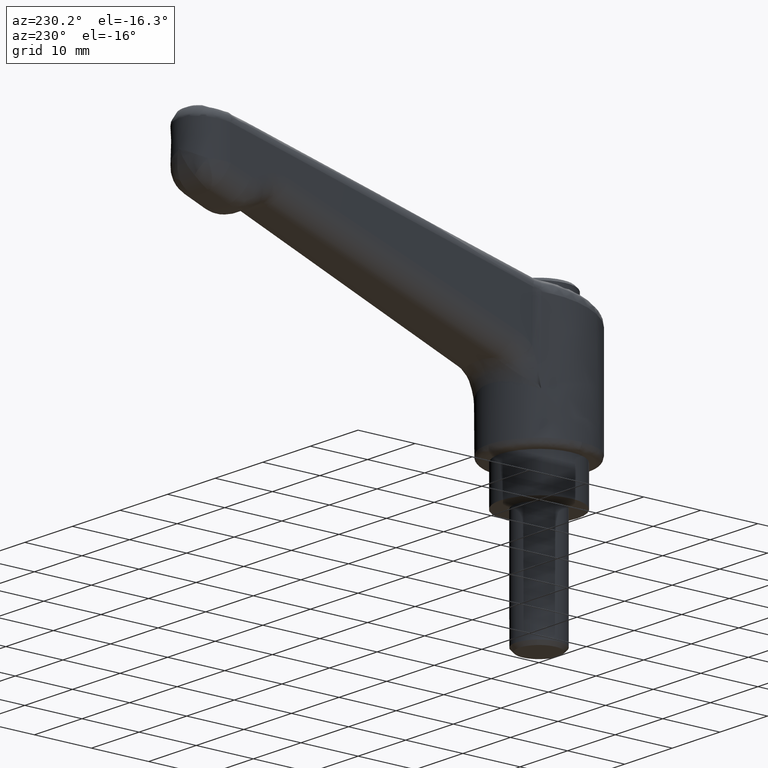
[diagram: clean part render]
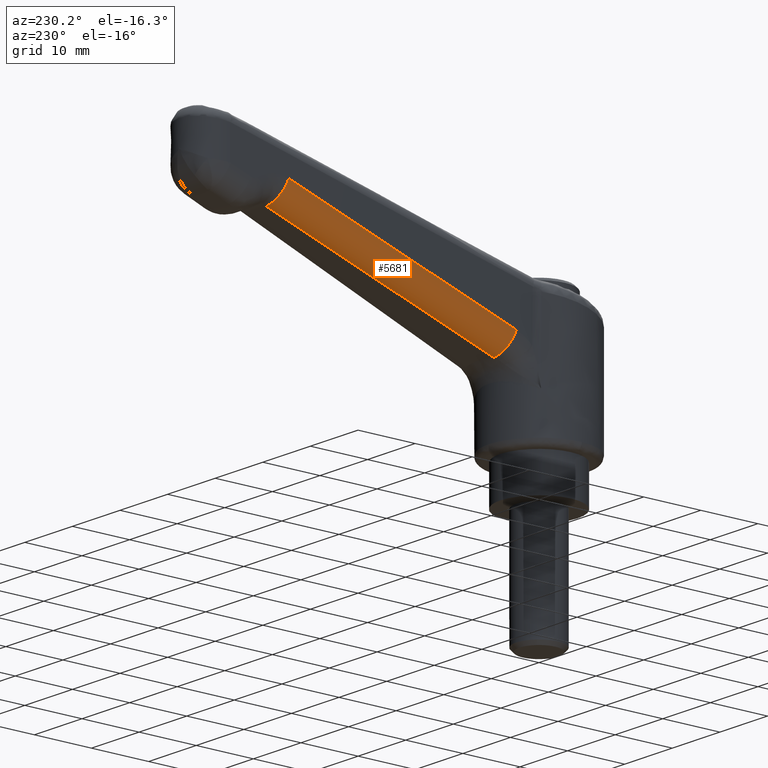
[diagram: same view with one face highlighted and labeled with its STEP entity id]
A machine part, auxiliary view. The second image highlights one B-rep face of the part: STEP entity #5681.
In plain terms, the highlighted face is a freeform B-spline surface patch.
Its self-contained STEP definition (entity closure, byte-faithful):
#5590=CARTESIAN_POINT('',(9.262958616653201,6.402179053604970,21.973302108330049));
#5591=VERTEX_POINT('',#5590);
#5592=CARTESIAN_POINT('',(10.359522173690999,2.903622422313820,18.684377667119900));
#5593=VERTEX_POINT('',#5592);
#5594=CARTESIAN_POINT('',(9.262958616653201,6.402179053604970,21.973302108330049));
#5595=CARTESIAN_POINT('',(9.374800851340824,6.399090983416739,21.665774140258900));
#5596=CARTESIAN_POINT('',(9.542932899267282,6.323740297409492,21.197887433682158));
#5597=CARTESIAN_POINT('',(9.782253909924144,6.049935934321756,20.518746707463301));
#5598=CARTESIAN_POINT('',(9.997160502457533,5.644240326873926,19.896274003149991));
#5599=CARTESIAN_POINT('',(10.172425677898779,5.062468893915720,19.368817726430802));
#5600=CARTESIAN_POINT('',(10.281658455403710,4.448976611814090,19.020280393253419));
#5601=CARTESIAN_POINT('',(10.354959030334591,3.771115411598961,18.765385448658922));
#5602=CARTESIAN_POINT('',(10.368235084121039,3.244982417534518,18.687382441082949));
#5603=CARTESIAN_POINT('',(10.359522173690999,2.903622422313820,18.684377667119900));
#5604=B_SPLINE_CURVE_WITH_KNOTS('',3,(#5594,#5595,#5596,#5597,#5598,#5599,#5600,#5601,#5602,#5603),.UNSPECIFIED.,.F.,.U.,(4,1,1,1,1,1,1,4),(0.000000091882236,0.981703956230132,1.493912572716129,2.304911344370001,3.286590424066838,3.884166311990577,4.439051220912047,5.463445318235297),.UNSPECIFIED.);
#5605=EDGE_CURVE('',#5591,#5593,#5604,.T.);
#5637=CARTESIAN_POINT('',(8.246319324658852,6.429116084484139,21.737356402377628));
#5638=CARTESIAN_POINT('',(49.158520331568887,5.253794208285529,36.628169396621892));
#5639=CARTESIAN_POINT('',(9.566401671407956,6.529952389128280,18.118416373922493));
#5640=CARTESIAN_POINT('',(50.478602678318019,5.354630512929671,33.009229368166757));
#5641=CARTESIAN_POINT('',(9.376880845697839,2.687254104912545,18.335819329733521));
#5642=CARTESIAN_POINT('',(50.289081852607907,1.511932228713937,33.226632323977782));
#5650=(BOUNDED_SURFACE()B_SPLINE_SURFACE(1,2,((#5637,#5639,#5641),(#5638,#5640,#5642)),.UNSPECIFIED.,.F.,.F.,.U.)B_SPLINE_SURFACE_WITH_KNOTS((2,2),(3,3),(0.0,43.553712635917030),(0.0,6.196964391042118),.UNSPECIFIED.)GEOMETRIC_REPRESENTATION_ITEM()RATIONAL_B_SPLINE_SURFACE(((1.0,0.671051942573897,0.996179641709109),(1.0,0.671051942573897,0.996179641709109)))REPRESENTATION_ITEM('')SURFACE());
#5651=CARTESIAN_POINT('',(48.203780514961402,5.283490771678870,36.146592287265499));
#5652=VERTEX_POINT('',#5651);
#5653=CARTESIAN_POINT('',(49.300344071999113,1.784934140387715,32.857667846055499));
#5654=VERTEX_POINT('',#5653);
#5655=CARTESIAN_POINT('',(48.203780514961402,5.283490771678870,36.146592287265499));
#5656=CARTESIAN_POINT('',(48.344818447483611,5.279772432658270,35.758799995980340));
#5657=CARTESIAN_POINT('',(48.541086134449358,5.169375091565430,35.210844993555092));
#5658=CARTESIAN_POINT('',(48.792918795714947,4.813470201061562,34.490848626291708));
#5659=CARTESIAN_POINT('',(48.974117765064747,4.414697849898636,33.961533368135100));
#5660=CARTESIAN_POINT('',(49.124145068237389,3.882378350159711,33.507320831874281));
#5661=CARTESIAN_POINT('',(49.239997012067477,3.232175431472133,33.137699930079812));
#5662=CARTESIAN_POINT('',(49.301855383446323,2.538733327753337,32.913012413065040));
#5663=CARTESIAN_POINT('',(49.306123324853168,2.012489883506119,32.859750290339328));
#5664=CARTESIAN_POINT('',(49.300344071999113,1.784934140387715,32.857667846055499));
#5665=B_SPLINE_CURVE_WITH_KNOTS('',3,(#5655,#5656,#5657,#5658,#5659,#5660,#5661,#5662,#5663,#5664),.UNSPECIFIED.,.F.,.U.,(4,1,1,1,1,1,1,4),(0.000000091871136,1.237810782500368,1.750019277245289,2.518323445603058,3.286590424063016,3.884166311987659,4.780520402458770,5.463445318235269),.UNSPECIFIED.);
#5666=EDGE_CURVE('',#5652,#5654,#5665,.T.);
#5667=ORIENTED_EDGE('',*,*,#5666,.T.);
#5668=CARTESIAN_POINT('',(10.359522173690999,2.903622422313820,18.684377667119900));
#5669=CARTESIAN_POINT('',(49.300344071999113,1.784934140387715,32.857667846055499));
#5670=QUASI_UNIFORM_CURVE('',1,(#5668,#5669),.UNSPECIFIED.,.F.,.U.);
#5671=EDGE_CURVE('',#5593,#5654,#5670,.T.);
#5672=ORIENTED_EDGE('',*,*,#5671,.F.);
#5673=ORIENTED_EDGE('',*,*,#5605,.F.);
#5674=CARTESIAN_POINT('',(48.203780514961402,5.283490771678870,36.146592287265499));
#5675=CARTESIAN_POINT('',(9.262958616653201,6.402179053604970,21.973302108330049));
#5676=QUASI_UNIFORM_CURVE('',1,(#5674,#5675),.UNSPECIFIED.,.F.,.U.);
#5677=EDGE_CURVE('',#5652,#5591,#5676,.T.);
#5678=ORIENTED_EDGE('',*,*,#5677,.F.);
#5679=EDGE_LOOP('',(#5667,#5672,#5673,#5678));
#5680=FACE_OUTER_BOUND('',#5679,.T.);
#5681=ADVANCED_FACE('',(#5680),#5650,.T.);